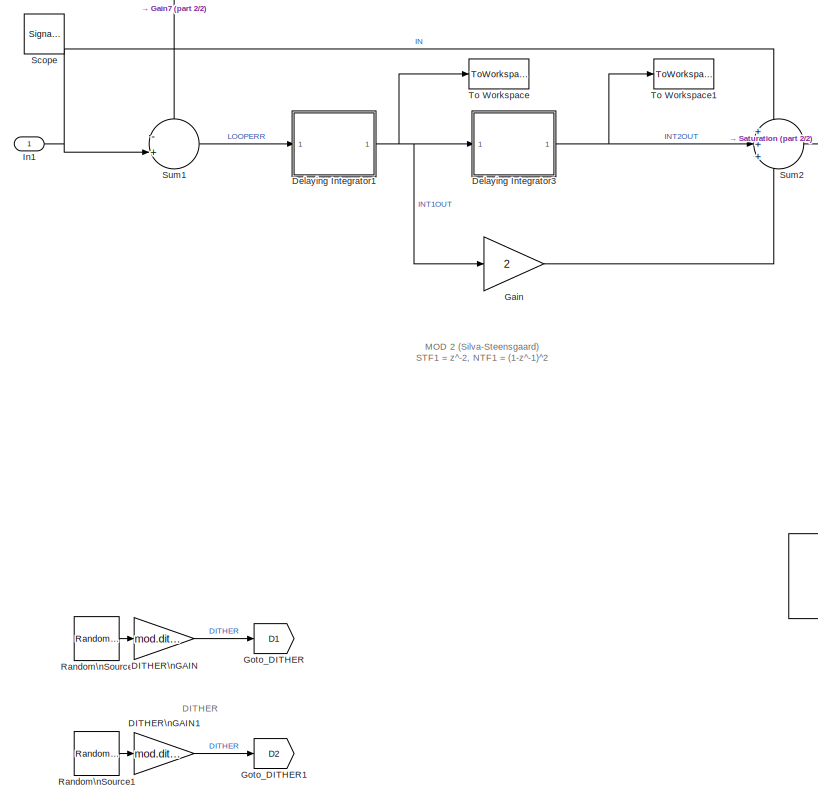
[diagram: root canvas - part 1/2, left side, full height]
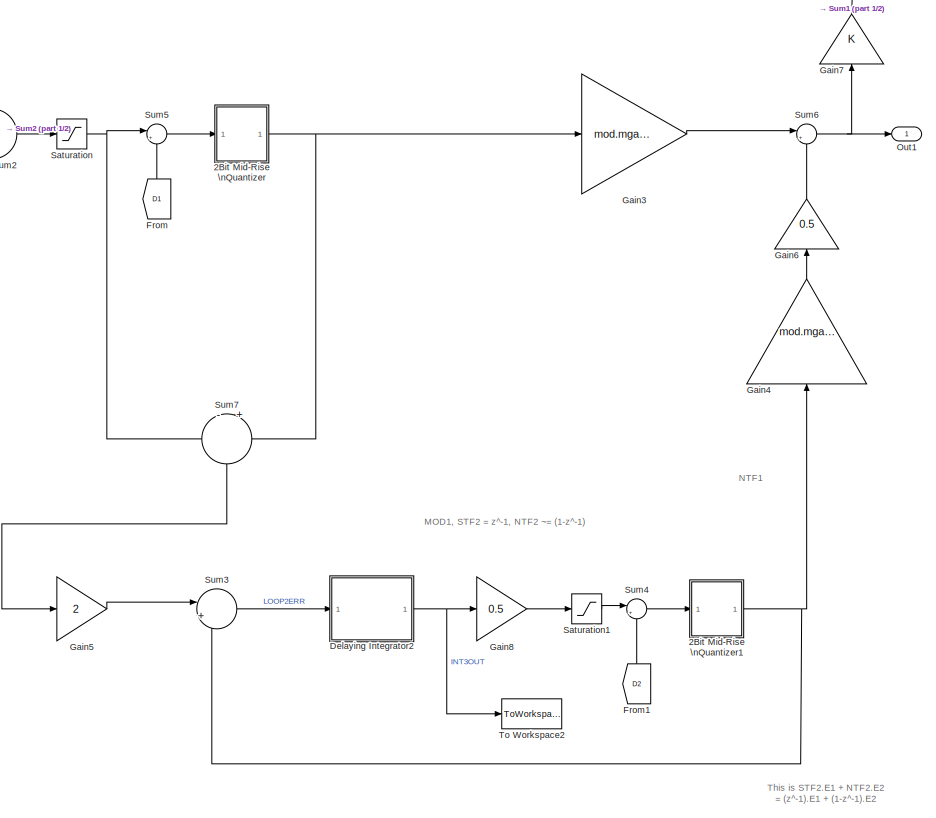
[diagram: root canvas - part 2/2, right side, full height]
MODEL mod3_2plus1SMASH
KIND model
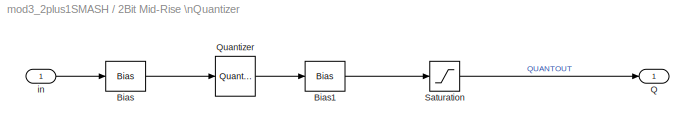
BLOCK [SubSystem] 2Bit Mid-Rise \nQuantizer
  FunctionWithSeparateData = off
  MaskHideContents = off
  MinAlgLoopOccurrences = off
  Opaque = off
  Ports = [1, 1]
  PropExecContextOutsideSubsystem = off
  RTWSystemCode = Auto
  RequestExecContextInheritance = off
  SID = 187
BLOCK [Bias] 2Bit Mid-Rise \nQuantizer/Bias
  AttributesFormatString = Need offset to give\\nMID-RISE quantiser
  Bias = 1/3
  SID = 189
  SaturateOnIntegerOverflow = off
BLOCK [Bias] 2Bit Mid-Rise \nQuantizer/Bias1
  Bias = -1/3
  SID = 190
  SaturateOnIntegerOverflow = off
BLOCK [Outport] 2Bit Mid-Rise \nQuantizer/Q
  IconDisplay = Port number
  SID = 193
BLOCK [Quantizer] 2Bit Mid-Rise \nQuantizer/Quantizer
  LinearizeAsGain = off
  QuantizationInterval = 2/3
  SID = 191
  SampleTime = 1/Fs
BLOCK [Saturate] 2Bit Mid-Rise \nQuantizer/Saturation
  InputPortMap = u0
  LowerLimit = -(mod.qsatout1)
  Ports = [1, 1]
  SID = 192
  UpperLimit = mod.qsatout1
BLOCK [Inport] 2Bit Mid-Rise \nQuantizer/in
  IconDisplay = Port number
  SID = 188
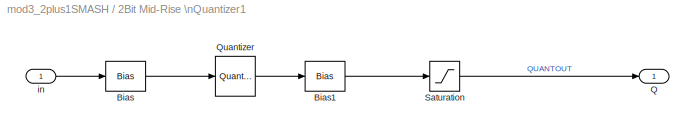
BLOCK [SubSystem] 2Bit Mid-Rise \nQuantizer1
  FunctionWithSeparateData = off
  MaskHideContents = off
  MinAlgLoopOccurrences = off
  Opaque = off
  Ports = [1, 1]
  PropExecContextOutsideSubsystem = off
  RTWSystemCode = Auto
  RequestExecContextInheritance = off
  SID = 194
BLOCK [Bias] 2Bit Mid-Rise \nQuantizer1/Bias
  AttributesFormatString = Need offset to give\\nMID-RISE quantiser
  Bias = 1
  SID = 196
  SaturateOnIntegerOverflow = off
BLOCK [Bias] 2Bit Mid-Rise \nQuantizer1/Bias1
  Bias = -1
  SID = 197
  SaturateOnIntegerOverflow = off
BLOCK [Outport] 2Bit Mid-Rise \nQuantizer1/Q
  IconDisplay = Port number
  SID = 200
BLOCK [Quantizer] 2Bit Mid-Rise \nQuantizer1/Quantizer
  LinearizeAsGain = off
  QuantizationInterval = 2
  SID = 198
  SampleTime = 1/Fs
BLOCK [Saturate] 2Bit Mid-Rise \nQuantizer1/Saturation
  InputPortMap = u0
  LowerLimit = -(mod.qsatout1)
  Ports = [1, 1]
  SID = 199
  UpperLimit = mod.qsatout1
BLOCK [Inport] 2Bit Mid-Rise \nQuantizer1/in
  IconDisplay = Port number
  SID = 195
BLOCK [Gain] DITHER\nGAIN
  Gain = mod.dither
  OutDataTypeStr = Inherit: Inherit via internal rule
  ParamDataTypeStr = Inherit: Inherit via internal rule
  SID = 158
  SampleTime = 1/Fs
  SaturateOnIntegerOverflow = off
BLOCK [Gain] DITHER\nGAIN1
  Gain = mod.dither1
  OutDataTypeStr = Inherit: Inherit via internal rule
  ParamDataTypeStr = Inherit: Inherit via internal rule
  SID = 162
  SampleTime = 1/Fs
  SaturateOnIntegerOverflow = off
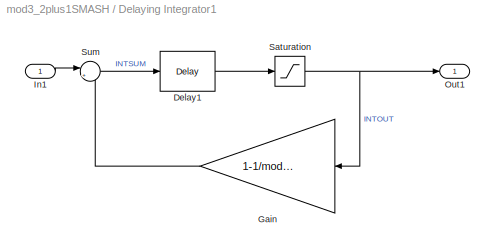
BLOCK [SubSystem] Delaying Integrator1
  FunctionWithSeparateData = off
  MaskHideContents = off
  MinAlgLoopOccurrences = off
  Opaque = off
  Ports = [1, 1]
  PropExecContextOutsideSubsystem = off
  RTWSystemCode = Auto
  RequestExecContextInheritance = off
  SID = 166
BLOCK [Reference] Delaying Integrator1/Delay1  REF=dspsigops/Delay
  InputProcessing = Inherited (this choice will be removed - see release notes)
  Ports = [1, 1]
  SID = 168
  SourceBlock = dspsigops/Delay
  SourceType = Delay
  UserData = DataTag0
  UserDataPersistent = on
  delay = 1
  dif_ic_for_ch = off
  dif_ic_for_dly = off
  dly_unit = Samples
  ic = 0
  ic_detail = off
  reset_popup = None
BLOCK [Gain] Delaying Integrator1/Gain
  AttributesFormatString = Integrator leakage
  Gain = 1-1/mod.igain1
  OutDataTypeStr = Inherit: Inherit via internal rule
  ParamDataTypeStr = Inherit: Inherit via internal rule
  SID = 169
  SaturateOnIntegerOverflow = off
BLOCK [Inport] Delaying Integrator1/In1
  IconDisplay = Port number
  SID = 167
BLOCK [Outport] Delaying Integrator1/Out1
  IconDisplay = Port number
  SID = 172
BLOCK [Saturate] Delaying Integrator1/Saturation
  InputPortMap = u0
  LowerLimit = -(mod.isat1)
  Ports = [1, 1]
  SID = 170
  UpperLimit = mod.isat1
BLOCK [Sum] Delaying Integrator1/Sum
  AttributesFormatString = Integrator summer
  IconShape = round
  InputSameDT = off
  Inputs = |++
  OutDataTypeStr = Inherit: Inherit via internal rule
  Ports = [2, 1]
  SID = 171
  SaturateOnIntegerOverflow = off
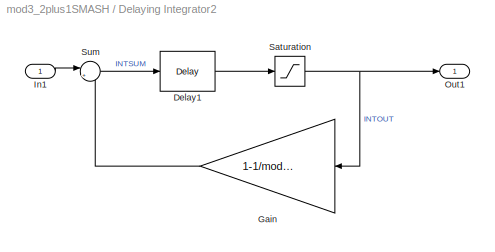
BLOCK [SubSystem] Delaying Integrator2
  FunctionWithSeparateData = off
  MaskHideContents = off
  MinAlgLoopOccurrences = off
  Opaque = off
  Ports = [1, 1]
  PropExecContextOutsideSubsystem = off
  RTWSystemCode = Auto
  RequestExecContextInheritance = off
  SID = 173
BLOCK [Reference] Delaying Integrator2/Delay1  REF=dspsigops/Delay
  InputProcessing = Inherited (this choice will be removed - see release notes)
  Ports = [1, 1]
  SID = 175
  SourceBlock = dspsigops/Delay
  SourceType = Delay
  UserData = DataTag1
  UserDataPersistent = on
  delay = 1
  dif_ic_for_ch = off
  dif_ic_for_dly = off
  dly_unit = Samples
  ic = 0
  ic_detail = off
  reset_popup = None
BLOCK [Gain] Delaying Integrator2/Gain
  AttributesFormatString = Integrator leakage
  Gain = 1-1/mod.igain3
  OutDataTypeStr = Inherit: Inherit via internal rule
  ParamDataTypeStr = Inherit: Inherit via internal rule
  SID = 176
  SaturateOnIntegerOverflow = off
BLOCK [Inport] Delaying Integrator2/In1
  IconDisplay = Port number
  SID = 174
BLOCK [Outport] Delaying Integrator2/Out1
  IconDisplay = Port number
  SID = 179
BLOCK [Saturate] Delaying Integrator2/Saturation
  InputPortMap = u0
  LowerLimit = -(mod.isat3)
  Ports = [1, 1]
  SID = 177
  UpperLimit = mod.isat3
BLOCK [Sum] Delaying Integrator2/Sum
  AttributesFormatString = Integrator summer
  IconShape = round
  InputSameDT = off
  Inputs = |++
  OutDataTypeStr = Inherit: Inherit via internal rule
  Ports = [2, 1]
  SID = 178
  SaturateOnIntegerOverflow = off
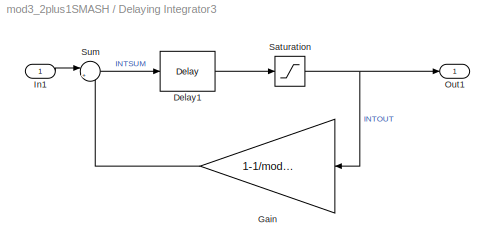
BLOCK [SubSystem] Delaying Integrator3
  FunctionWithSeparateData = off
  MaskHideContents = off
  MinAlgLoopOccurrences = off
  Opaque = off
  Ports = [1, 1]
  PropExecContextOutsideSubsystem = off
  RTWSystemCode = Auto
  RequestExecContextInheritance = off
  SID = 180
BLOCK [Reference] Delaying Integrator3/Delay1  REF=dspsigops/Delay
  InputProcessing = Inherited (this choice will be removed - see release notes)
  Ports = [1, 1]
  SID = 182
  SourceBlock = dspsigops/Delay
  SourceType = Delay
  UserData = DataTag2
  UserDataPersistent = on
  delay = 1
  dif_ic_for_ch = off
  dif_ic_for_dly = off
  dly_unit = Samples
  ic = 0
  ic_detail = off
  reset_popup = None
BLOCK [Gain] Delaying Integrator3/Gain
  AttributesFormatString = Integrator leakage
  Gain = 1-1/mod.igain2
  OutDataTypeStr = Inherit: Inherit via internal rule
  ParamDataTypeStr = Inherit: Inherit via internal rule
  SID = 183
  SaturateOnIntegerOverflow = off
BLOCK [Inport] Delaying Integrator3/In1
  IconDisplay = Port number
  SID = 181
BLOCK [Outport] Delaying Integrator3/Out1
  IconDisplay = Port number
  SID = 186
BLOCK [Saturate] Delaying Integrator3/Saturation
  InputPortMap = u0
  LowerLimit = -(mod.isat2)
  Ports = [1, 1]
  SID = 184
  UpperLimit = mod.isat2
BLOCK [Sum] Delaying Integrator3/Sum
  AttributesFormatString = Integrator summer
  IconShape = round
  InputSameDT = off
  Inputs = |++
  OutDataTypeStr = Inherit: Inherit via internal rule
  Ports = [2, 1]
  SID = 185
  SaturateOnIntegerOverflow = off
BLOCK [From] From
  GotoTag = D1
  SID = 131
BLOCK [From] From1
  GotoTag = D2
  SID = 133
BLOCK [Gain] Gain
  Gain = 2
  OutDataTypeStr = Inherit: Inherit via internal rule
  ParamDataTypeStr = Inherit: Inherit via internal rule
  SID = 77
  SaturateOnIntegerOverflow = off
BLOCK [Gain] Gain3
  Gain = mod.mgain1
  OutDataTypeStr = Inherit: Inherit via internal rule
  ParamDataTypeStr = Inherit: Inherit via internal rule
  SID = 116
  SaturateOnIntegerOverflow = off
BLOCK [Gain] Gain4
  Gain = mod.mgain2
  OutDataTypeStr = Inherit: Inherit via internal rule
  ParamDataTypeStr = Inherit: Inherit via internal rule
  SID = 117
  SaturateOnIntegerOverflow = off
BLOCK [Gain] Gain5
  AttributesFormatString = Option to scale input\\nfor saturation control...
  Gain = 2
  OutDataTypeStr = Inherit: Inherit via internal rule
  ParamDataTypeStr = Inherit: Inherit via internal rule
  SID = 127
  SaturateOnIntegerOverflow = off
BLOCK [Gain] Gain6
  AttributesFormatString = Option to un-scale input\\npost saturation control...
  Gain = 0.5
  OutDataTypeStr = Inherit: Inherit via internal rule
  ParamDataTypeStr = Inherit: Inherit via internal rule
  SID = 134
  SaturateOnIntegerOverflow = off
BLOCK [Gain] Gain7
  AttributesFormatString = Option to un-scale input\\npost saturation control...
  OutDataTypeStr = Inherit: Inherit via internal rule
  ParamDataTypeStr = Inherit: Inherit via internal rule
  SID = 148
  SaturateOnIntegerOverflow = off
BLOCK [Gain] Gain8
  AttributesFormatString = Option to scale input\\nfor saturation control...
  Gain = 0.5
  OutDataTypeStr = Inherit: Inherit via internal rule
  ParamDataTypeStr = Inherit: Inherit via internal rule
  SID = 149
  SaturateOnIntegerOverflow = off
BLOCK [Goto] Goto_DITHER
  GotoTag = D1
  SID = 159
BLOCK [Goto] Goto_DITHER1
  GotoTag = D2
  SID = 163
BLOCK [Inport] In1
  IconDisplay = Port number
  SID = 73
BLOCK [Outport] Out1
  IconDisplay = Port number
  SID = 74
BLOCK [Reference] Random\nSource  REF=dspsrcs4/Random\nSource
  CltLength = 12
  DataType = Double
  IsInherit = off
  MaxVal = 1
  MeanVal = 0
  MinVal = -1
  NormMethod = Ziggurat
  OutComplex = Real
  Ports = [0, 1]
  RepMode = Not repeatable
  SID = 160
  SampFrame = 1
  SampMode = Discrete
  SampTime = 1/Fs
  SourceBlock = dspsrcs4/Random\nSource
  SourceType = Random Source
  SrcType = Uniform
  UserData = DataTag3
  UserDataPersistent = on
  VarVal = 1
  rawSeed = 1
BLOCK [Reference] Random\nSource1  REF=dspsrcs4/Random\nSource
  CltLength = 12
  DataType = Double
  IsInherit = off
  MaxVal = 1
  MeanVal = 0
  MinVal = -1
  NormMethod = Ziggurat
  OutComplex = Real
  Ports = [0, 1]
  RepMode = Not repeatable
  SID = 164
  SampFrame = 1
  SampMode = Discrete
  SampTime = 1/Fs
  SourceBlock = dspsrcs4/Random\nSource
  SourceType = Random Source
  SrcType = Uniform
  UserData = DataTag4
  UserDataPersistent = on
  VarVal = 1
  rawSeed = 1
BLOCK [Saturate] Saturation
  InputPortMap = u0
  LowerLimit = -(mod.qsatin1)
  Ports = [1, 1]
  SID = 135
  UpperLimit = mod.qsatin1
BLOCK [Saturate] Saturation1
  InputPortMap = u0
  LowerLimit = -(mod.qsatin2)
  Ports = [1, 1]
  SID = 136
  UpperLimit = mod.qsatin2
BLOCK [SignalViewerScope] Scope
  IOType = viewer
  MaxDataPoints = 7500
  NumInputPorts = 3
  Ports = []
  RefreshTime = 0.035000
  SID = 137
  ShowDataMarkers = off
  ShowLegends = off
  YMax = 5~5~15
  YMin = -5~-5~-15
  ZoomMode = yonly
BLOCK [Sum] Sum1
  AttributesFormatString = Modulator input\\nloop servo error (input - fbk)
  IconShape = round
  InputSameDT = off
  Inputs = -+|
  OutDataTypeStr = Inherit: Inherit via internal rule
  Ports = [2, 1]
  SID = 7
  SampleTime = 1/Fs
  SaturateOnIntegerOverflow = off
BLOCK [Sum] Sum2
  IconShape = round
  InputSameDT = off
  Inputs = +++
  OutDataTypeStr = Inherit: Inherit via internal rule
  Ports = [3, 1]
  SID = 30
  SampleTime = 1/Fs
  SaturateOnIntegerOverflow = off
BLOCK [Sum] Sum3
  AttributesFormatString = Modulator input\\nloop servo error (input - fbk)
  IconShape = round
  InputSameDT = off
  Inputs = |+-
  OutDataTypeStr = Inherit: Inherit via internal rule
  Ports = [2, 1]
  SID = 100
  SaturateOnIntegerOverflow = off
BLOCK [Sum] Sum4
  IconShape = round
  InputSameDT = off
  Inputs = |++
  OutDataTypeStr = Inherit: Inherit via internal rule
  Ports = [2, 1]
  SID = 109
  SaturateOnIntegerOverflow = off
BLOCK [Sum] Sum5
  IconShape = round
  InputSameDT = off
  Inputs = |++
  OutDataTypeStr = Inherit: Inherit via internal rule
  Ports = [2, 1]
  SID = 82
  SaturateOnIntegerOverflow = off
BLOCK [Sum] Sum6
  IconShape = round
  InputSameDT = off
  Inputs = |+-
  OutDataTypeStr = Inherit: Inherit via internal rule
  Ports = [2, 1]
  SID = 112
  SaturateOnIntegerOverflow = off
BLOCK [Sum] Sum7
  IconShape = round
  InputSameDT = off
  Inputs = -|+
  OutDataTypeStr = Inherit: Inherit via internal rule
  Ports = [2, 1]
  SID = 138
  SaturateOnIntegerOverflow = off
BLOCK [ToWorkspace] To Workspace
  MaxDataPoints = inf
  Ports = [1]
  SID = 150
  SampleTime = -1
  VariableName = INT1OUT
BLOCK [ToWorkspace] To Workspace1
  MaxDataPoints = inf
  Ports = [1]
  SID = 151
  SampleTime = -1
  VariableName = INT2OUT
BLOCK [ToWorkspace] To Workspace2
  MaxDataPoints = inf
  Ports = [1]
  SID = 152
  SampleTime = -1
  VariableName = INT3OUT
ANNOTATION (root): DITHER \n\n\n\n\n\n\n\n\n\n\n\n
ANNOTATION (root): MOD 2 (Silva-Steensgaard)\nSTF1 = z^-2, NTF1 = (1-z^-1)^2
ANNOTATION (root): MOD1, STF2 = z^-1, NTF2 ~= (1-z^-1)
ANNOTATION (root): NTF1
ANNOTATION (root): This is STF2.E1 + NTF2.E2\n= (z^-1).E1 + (1-z^-1).E2
LINE 2Bit Mid-Rise \nQuantizer/Bias1:1 -> 2Bit Mid-Rise \nQuantizer/Saturation:1
LINE 2Bit Mid-Rise \nQuantizer/Bias:1 -> 2Bit Mid-Rise \nQuantizer/Quantizer:1
LINE 2Bit Mid-Rise \nQuantizer/Quantizer:1 -> 2Bit Mid-Rise \nQuantizer/Bias1:1
LINE 2Bit Mid-Rise \nQuantizer/Saturation:1 -> 2Bit Mid-Rise \nQuantizer/Q:1
LINE 2Bit Mid-Rise \nQuantizer/in:1 -> 2Bit Mid-Rise \nQuantizer/Bias:1
LINE 2Bit Mid-Rise \nQuantizer1/Bias1:1 -> 2Bit Mid-Rise \nQuantizer1/Saturation:1
LINE 2Bit Mid-Rise \nQuantizer1/Bias:1 -> 2Bit Mid-Rise \nQuantizer1/Quantizer:1
LINE 2Bit Mid-Rise \nQuantizer1/Quantizer:1 -> 2Bit Mid-Rise \nQuantizer1/Bias1:1
LINE 2Bit Mid-Rise \nQuantizer1/Saturation:1 -> 2Bit Mid-Rise \nQuantizer1/Q:1
LINE 2Bit Mid-Rise \nQuantizer1/in:1 -> 2Bit Mid-Rise \nQuantizer1/Bias:1
NET 2Bit Mid-Rise \nQuantizer1:1 -> Gain4:1, Sum3:2
NET 2Bit Mid-Rise \nQuantizer:1 -> Gain3:1, Sum7:2
LINE DITHER\nGAIN1:1 -> Goto_DITHER1:1
LINE DITHER\nGAIN:1 -> Goto_DITHER:1
LINE Delaying Integrator1/Delay1:1 -> Delaying Integrator1/Saturation:1
LINE Delaying Integrator1/Gain:1 -> Delaying Integrator1/Sum:2
LINE Delaying Integrator1/In1:1 -> Delaying Integrator1/Sum:1
NET Delaying Integrator1/Saturation:1 -> Delaying Integrator1/Gain:1, Delaying Integrator1/Out1:1
LINE Delaying Integrator1/Sum:1 -> Delaying Integrator1/Delay1:1
NET Delaying Integrator1:1 -> Delaying Integrator3:1, Gain:1, To Workspace:1
LINE Delaying Integrator2/Delay1:1 -> Delaying Integrator2/Saturation:1
LINE Delaying Integrator2/Gain:1 -> Delaying Integrator2/Sum:2
LINE Delaying Integrator2/In1:1 -> Delaying Integrator2/Sum:1
NET Delaying Integrator2/Saturation:1 -> Delaying Integrator2/Gain:1, Delaying Integrator2/Out1:1
LINE Delaying Integrator2/Sum:1 -> Delaying Integrator2/Delay1:1
NET Delaying Integrator2:1 -> Gain8:1, To Workspace2:1
LINE Delaying Integrator3/Delay1:1 -> Delaying Integrator3/Saturation:1
LINE Delaying Integrator3/Gain:1 -> Delaying Integrator3/Sum:2
LINE Delaying Integrator3/In1:1 -> Delaying Integrator3/Sum:1
NET Delaying Integrator3/Saturation:1 -> Delaying Integrator3/Gain:1, Delaying Integrator3/Out1:1
LINE Delaying Integrator3/Sum:1 -> Delaying Integrator3/Delay1:1
NET Delaying Integrator3:1 -> Sum2:2, To Workspace1:1
LINE From1:1 -> Sum4:2
LINE From:1 -> Sum5:2
LINE Gain3:1 -> Sum6:1
LINE Gain4:1 -> Gain6:1
LINE Gain5:1 -> Sum3:1
LINE Gain6:1 -> Sum6:2
LINE Gain7:1 -> Sum1:1
LINE Gain8:1 -> Saturation1:1
LINE Gain:1 -> Sum2:3
NET In1:1 -> Sum1:2, Sum2:1
LINE Random\nSource1:1 -> DITHER\nGAIN1:1
LINE Random\nSource:1 -> DITHER\nGAIN:1
LINE Saturation1:1 -> Sum4:1
NET Saturation:1 -> Sum5:1, Sum7:1
LINE Sum1:1 -> Delaying Integrator1:1
LINE Sum2:1 -> Saturation:1
LINE Sum3:1 -> Delaying Integrator2:1
LINE Sum4:1 -> 2Bit Mid-Rise \nQuantizer1:1
LINE Sum5:1 -> 2Bit Mid-Rise \nQuantizer:1
NET Sum6:1 -> Gain7:1, Out1:1
LINE Sum7:1 -> Gain5:1
note: NET lines group one-source signal fan-out (src -> all destinations, sorted); 1:1 wires keep LINE
